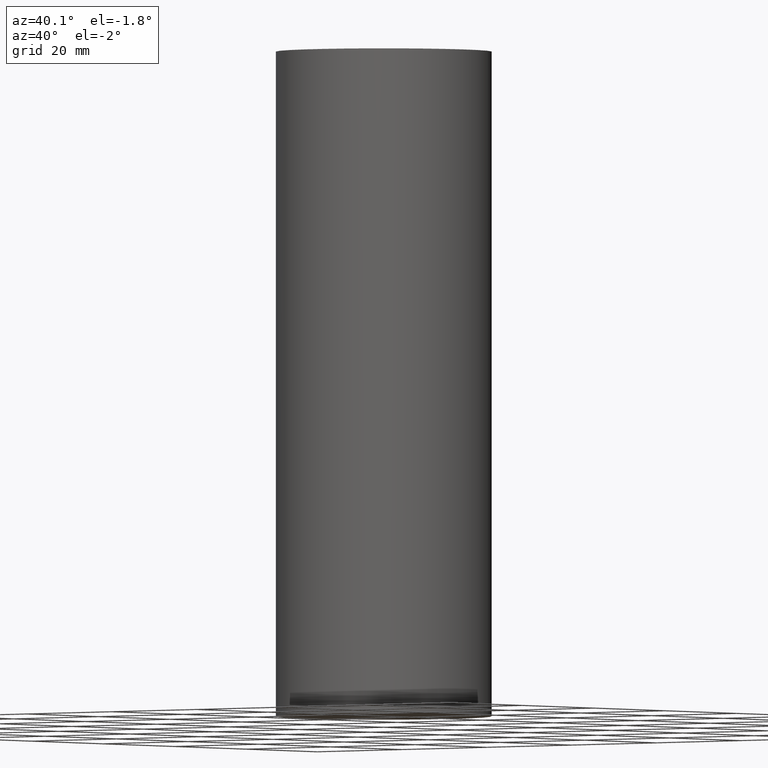
[diagram: clean part render]
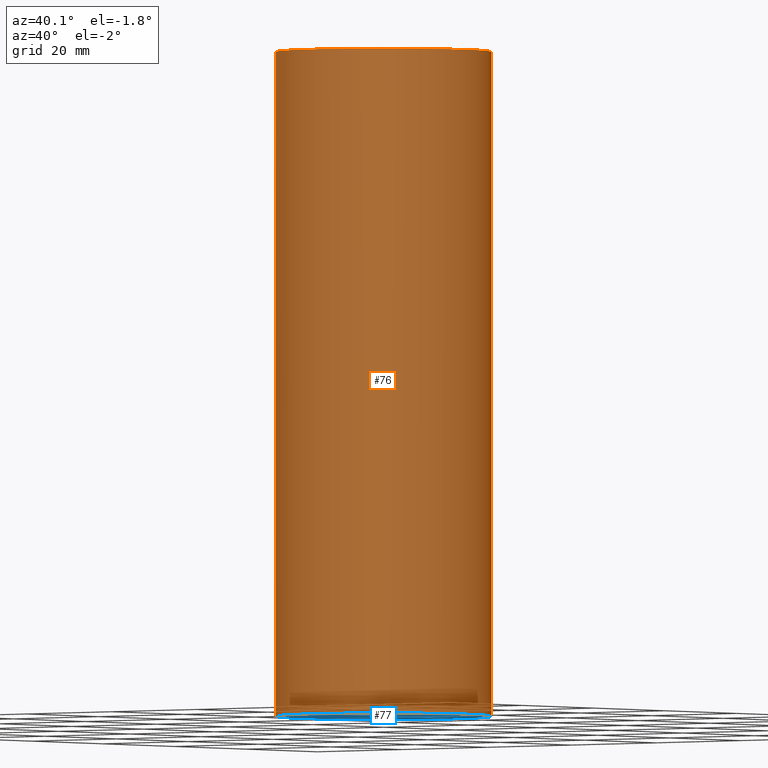
[diagram: same view with the hole feature highlighted: cylindrical wall and planar end face, labeled with their STEP entity ids]
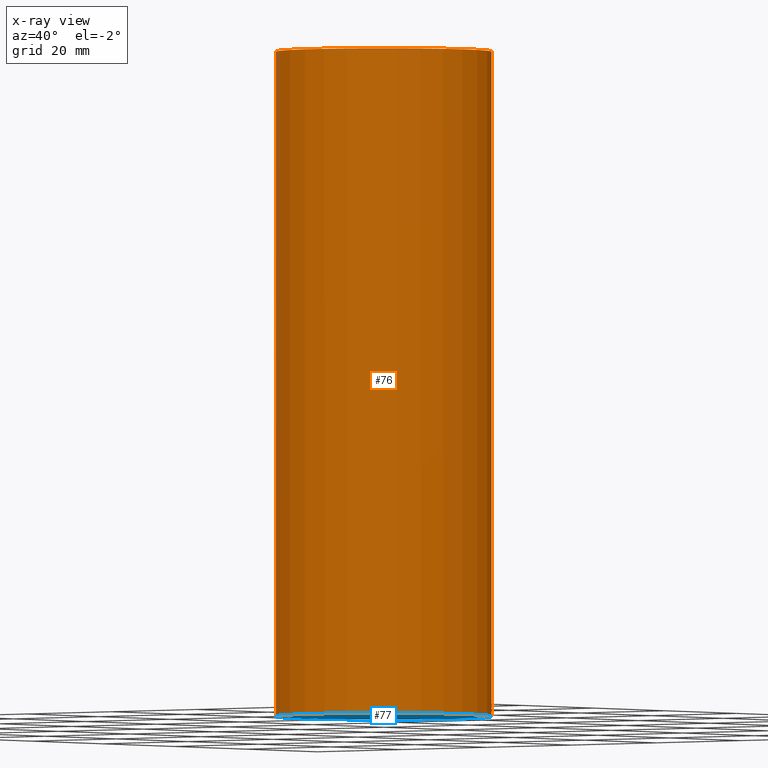
[diagram: x-ray of the same camera — body ghosted, the hole faces saturated]
A machine part, auxiliary view. The highlighted faces form one hole feature of diameter 39 mm: the cylindrical wall (entity #76, orange) and its adjacent planar end face (entity #77, blue) — they share a circular edge in the B-rep.
The next image is the same camera in x-ray (body ghosted, the hole faces saturated) — the bore reads through the body.
Wall:
#76=ADVANCED_FACE('',(#81,#82),#83,.T.);
#81=FACE_BOUND('',#88,.T.);
#82=FACE_BOUND('',#89,.T.);
#83=CYLINDRICAL_SURFACE('',#90,19.5);
#88=EDGE_LOOP('',(#97));
#89=EDGE_LOOP('',(#98));
#90=AXIS2_PLACEMENT_3D('',#99,#100,#101);
#97=ORIENTED_EDGE('',*,*,#107,.F.);
#98=ORIENTED_EDGE('',*,*,#106,.T.);
#99=CARTESIAN_POINT('',(3.67394039744206E-015,7.34788079488412E-015,-60.0));
#100=DIRECTION('',(-6.12323399573677E-017,-1.22464679914735E-016,1.0));
#101=DIRECTION('',(-1.23259516440783E-032,1.0,1.22464679914735E-016));
#106=EDGE_CURVE('',#108,#108,#109,.T.);
#107=EDGE_CURVE('',#110,#110,#111,.T.);
#108=VERTEX_POINT('',#112);
#109=CIRCLE('',#113,19.5);
#110=VERTEX_POINT('',#114);
#111=CIRCLE('',#115,19.5);
#112=CARTESIAN_POINT('',(-2.40356057059527E-031,19.5,2.38806125833734E-015));
#113=AXIS2_PLACEMENT_3D('',#116,#117,#118);
#114=CARTESIAN_POINT('',(7.34788079488412E-015,19.5,-120.0));
#115=AXIS2_PLACEMENT_3D('',#119,#120,#121);
#116=CARTESIAN_POINT('',(0.0,0.0,0.0));
#117=DIRECTION('',(6.12323399573677E-017,1.22464679914735E-016,-1.0));
#118=DIRECTION('',(-1.23259516440783E-032,1.0,1.22464679914735E-016));
#119=CARTESIAN_POINT('',(7.34788079488412E-015,1.46957615897682E-014,-120.0));
#120=DIRECTION('',(6.12323399573677E-017,1.22464679914735E-016,-1.0));
#121=DIRECTION('',(-1.23259516440783E-032,1.0,1.22464679914735E-016));
End face:
#77=ADVANCED_FACE('',(#84),#85,.T.);
#84=FACE_OUTER_BOUND('',#91,.T.);
#85=PLANE('',#92);
#91=EDGE_LOOP('',(#102));
#92=AXIS2_PLACEMENT_3D('',#103,#104,#105);
#102=ORIENTED_EDGE('',*,*,#107,.T.);
#103=CARTESIAN_POINT('',(7.34788079488412E-015,9.75000000000001,-120.0));
#104=DIRECTION('',(6.12323399573677E-017,1.22464679914735E-016,-1.0));
#105=DIRECTION('',(-1.23259516440783E-032,1.0,1.22464679914735E-016));
#107=EDGE_CURVE('',#110,#110,#111,.T.);
#110=VERTEX_POINT('',#114);
#111=CIRCLE('',#115,19.5);
#114=CARTESIAN_POINT('',(7.34788079488412E-015,19.5,-120.0));
#115=AXIS2_PLACEMENT_3D('',#119,#120,#121);
#119=CARTESIAN_POINT('',(7.34788079488412E-015,1.46957615897682E-014,-120.0));
#120=DIRECTION('',(6.12323399573677E-017,1.22464679914735E-016,-1.0));
#121=DIRECTION('',(-1.23259516440783E-032,1.0,1.22464679914735E-016));